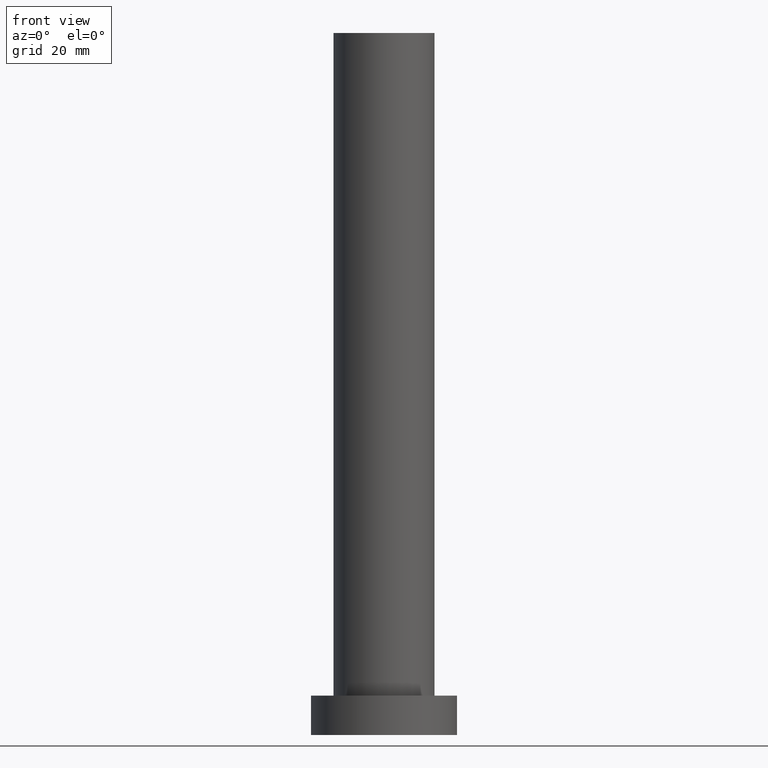
[diagram: clean part render]
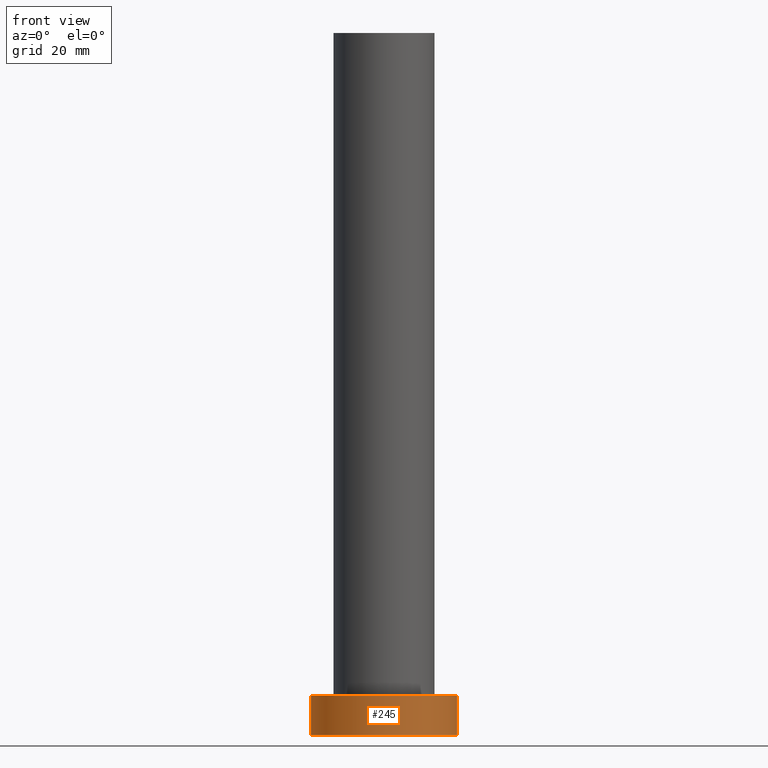
[diagram: same view with one face highlighted and labeled with its STEP entity id]
A machine part, front view. The second image highlights one B-rep face of the part: STEP entity #245.
In plain terms, the highlighted cylindrical surface (partial cylindrical patch) has radius 13 mm, axis along (-0, -0, -1).
Its self-contained STEP definition (entity closure, byte-faithful):
#19 = LINE ( 'NONE', #101, #242 ) ;
#21 = CARTESIAN_POINT ( 'NONE',  ( 0.000000000000000000, 0.000000000000000000, 0.000000000000000000 ) ) ;
#26 = EDGE_CURVE ( 'NONE', #87, #226, #209, .T. ) ;
#35 = EDGE_CURVE ( 'NONE', #179, #87, #217, .T. ) ;
#36 = DIRECTION ( 'NONE',  ( -0.000000000000000000, -0.000000000000000000, -1.000000000000000000 ) ) ;
#37 = CARTESIAN_POINT ( 'NONE',  ( -13.00000000000000178, 0.000000000000000000, 0.000000000000000000 ) ) ;
#40 = EDGE_CURVE ( 'NONE', #241, #226, #208, .T. ) ;
#44 = EDGE_LOOP ( 'NONE', ( #91, #181, #206, #182 ) ) ;
#58 = CARTESIAN_POINT ( 'NONE',  ( 0.000000000000000000, 0.000000000000000000, 7.000000000000000000 ) ) ;
#66 = AXIS2_PLACEMENT_3D ( 'NONE', #58, #175, #82 ) ;
#78 = DIRECTION ( 'NONE',  ( 0.000000000000000000, 0.000000000000000000, 1.000000000000000000 ) ) ;
#82 = DIRECTION ( 'NONE',  ( 1.000000000000000000, 0.000000000000000000, 0.000000000000000000 ) ) ;
#84 = DIRECTION ( 'NONE',  ( -1.000000000000000000, 0.000000000000000000, 0.000000000000000000 ) ) ;
#87 = VERTEX_POINT ( 'NONE', #122 ) ;
#91 = ORIENTED_EDGE ( 'NONE', *, *, #26, .F. ) ;
#101 = CARTESIAN_POINT ( 'NONE',  ( -13.00000000000000178, 0.000000000000000000, 7.000000000000000000 ) ) ;
#115 = CYLINDRICAL_SURFACE ( 'NONE', #249, 13.00000000000000178 ) ;
#122 = CARTESIAN_POINT ( 'NONE',  ( 13.00000000000000178, 1.592040838891559293E-15, 7.000000000000000000 ) ) ;
#136 = AXIS2_PLACEMENT_3D ( 'NONE', #21, #78, #139 ) ;
#139 = DIRECTION ( 'NONE',  ( 1.000000000000000000, 0.000000000000000000, 0.000000000000000000 ) ) ;
#148 = CARTESIAN_POINT ( 'NONE',  ( -13.00000000000000178, 0.000000000000000000, 7.000000000000000000 ) ) ;
#172 = DIRECTION ( 'NONE',  ( -0.000000000000000000, -0.000000000000000000, -1.000000000000000000 ) ) ;
#175 = DIRECTION ( 'NONE',  ( 0.000000000000000000, 0.000000000000000000, 1.000000000000000000 ) ) ;
#176 = DIRECTION ( 'NONE',  ( -0.000000000000000000, -0.000000000000000000, -1.000000000000000000 ) ) ;
#179 = VERTEX_POINT ( 'NONE', #148 ) ;
#181 = ORIENTED_EDGE ( 'NONE', *, *, #35, .F. ) ;
#182 = ORIENTED_EDGE ( 'NONE', *, *, #40, .T. ) ;
#186 = FACE_OUTER_BOUND ( 'NONE', #44, .T. ) ;
#189 = VECTOR ( 'NONE', #172, 1000.000000000000000 ) ;
#197 = EDGE_CURVE ( 'NONE', #179, #241, #19, .T. ) ;
#206 = ORIENTED_EDGE ( 'NONE', *, *, #197, .T. ) ;
#208 = CIRCLE ( 'NONE', #136, 13.00000000000000178 ) ;
#209 = LINE ( 'NONE', #250, #189 ) ;
#210 = CARTESIAN_POINT ( 'NONE',  ( 13.00000000000000178, 1.592040838891559293E-15, 0.000000000000000000 ) ) ;
#217 = CIRCLE ( 'NONE', #66, 13.00000000000000178 ) ;
#226 = VERTEX_POINT ( 'NONE', #210 ) ;
#227 = CARTESIAN_POINT ( 'NONE',  ( 0.000000000000000000, 0.000000000000000000, 7.000000000000000000 ) ) ;
#241 = VERTEX_POINT ( 'NONE', #37 ) ;
#242 = VECTOR ( 'NONE', #36, 1000.000000000000000 ) ;
#245 = ADVANCED_FACE ( 'NONE', ( #186 ), #115, .T. ) ;
#249 = AXIS2_PLACEMENT_3D ( 'NONE', #227, #176, #84 ) ;
#250 = CARTESIAN_POINT ( 'NONE',  ( 13.00000000000000178, 1.592040838891559293E-15, 7.000000000000000000 ) ) ;